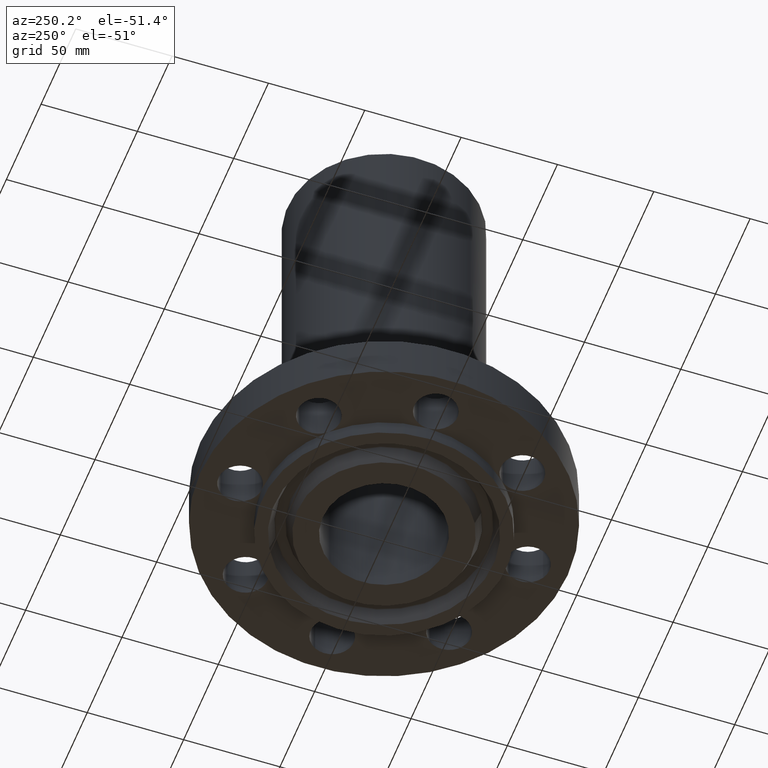
[diagram: clean part render]
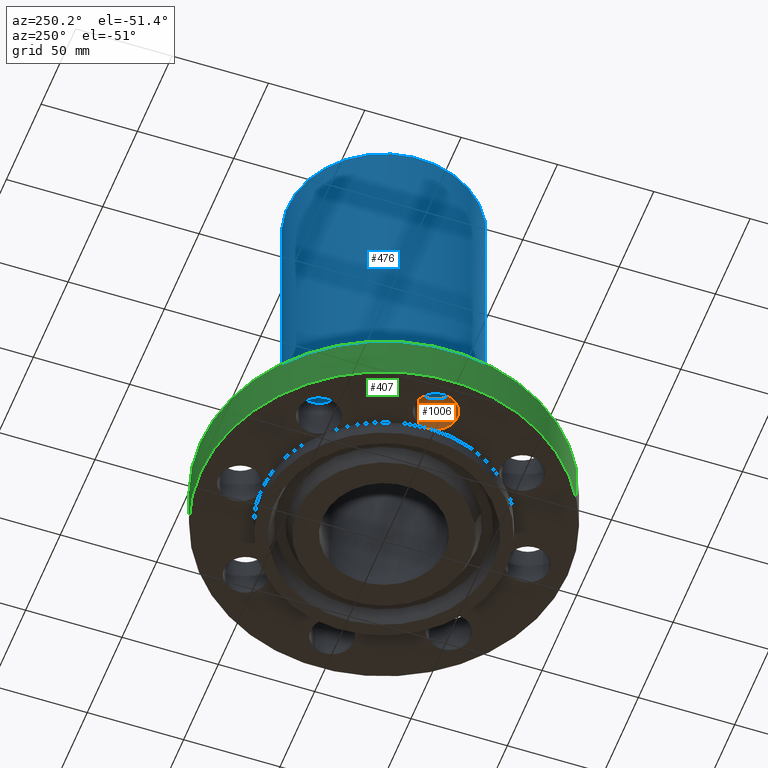
[diagram: same view with three faces highlighted in distinct colors, each labeled with its STEP entity id]
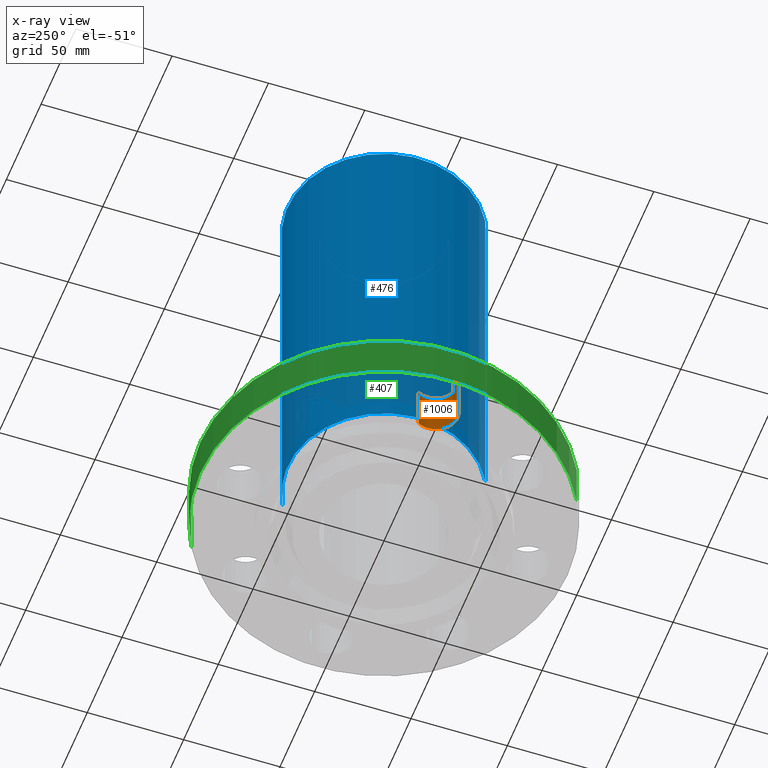
[diagram: x-ray of the same camera — body ghosted, the three highlighted faces saturated]
A machine part, auxiliary view with three faces highlighted in distinct colors.
The next image is the same camera in x-ray (body ghosted, the three faces saturated) — at least one of them is partly hidden behind the body in this view.
Their STEP definitions:

[orange] entity #1006 — the highlighted cylindrical surface (edge-blend (fillet) strip) has radius 11.176 mm, axis along (0, 0, 1).
#317=AXIS2_PLACEMENT_3D('Circle Axis2P3D',#315,#316,$) ;
#331=AXIS2_PLACEMENT_3D('Circle Axis2P3D',#329,#330,$) ;
#966=AXIS2_PLACEMENT_3D('Cylinder Axis2P3D',#963,#964,#965) ;
#996=AXIS2_PLACEMENT_3D('Circle Axis2P3D',#994,#995,$) ;
#170=CARTESIAN_POINT('Vertex',(-2.50000000001,-5.59482469102E-016,0.)) ;
#315=CARTESIAN_POINT('Axis2P3D Location',(-2.94000000001,-5.59482469102E-016,0.)) ;
#319=CARTESIAN_POINT('Vertex',(-2.55386367278,0.210947236987,0.)) ;
#326=CARTESIAN_POINT('Vertex',(-3.32613632725,-0.210947236987,2.2401153548E-016)) ;
#329=CARTESIAN_POINT('Axis2P3D Location',(-2.94000000001,-5.59482469102E-016,0.)) ;
#963=CARTESIAN_POINT('Axis2P3D Location',(-2.94000000001,-3.60046158951E-016,0.00393700787402)) ;
#968=CARTESIAN_POINT('Line Origine',(-2.55386367278,0.210947236987,0.468750000002)) ;
#972=CARTESIAN_POINT('Vertex',(-2.55386367278,0.210947236987,0.937500000004)) ;
#979=CARTESIAN_POINT('Vertex',(-3.32613632725,-0.210947236987,0.937500000004)) ;
#982=CARTESIAN_POINT('Line Origine',(-3.32613632725,-0.210947236987,0.468750000002)) ;
#994=CARTESIAN_POINT('Axis2P3D Location',(-2.94000000001,-3.60046158951E-016,0.937500000004)) ;
#316=DIRECTION('Axis2P3D Direction',(0.,0.,-0.0393700787402)) ;
#330=DIRECTION('Axis2P3D Direction',(0.,0.,-0.0393700787402)) ;
#964=DIRECTION('Axis2P3D Direction',(0.,0.,0.0393700787402)) ;
#965=DIRECTION('Axis2P3D XDirection',(-0.0345504945626,-0.0188750212049,0.)) ;
#969=DIRECTION('Vector Direction',(0.,0.,0.0393700787402)) ;
#983=DIRECTION('Vector Direction',(0.,0.,0.0393700787402)) ;
#995=DIRECTION('Axis2P3D Direction',(0.,0.,0.0393700787402)) ;
#970=VECTOR('Line Direction',#969,0.0393700787402) ;
#984=VECTOR('Line Direction',#983,0.0393700787402) ;
#1000=ORIENTED_EDGE('',*,*,#986,.F.) ;
#1001=ORIENTED_EDGE('',*,*,#998,.F.) ;
#1002=ORIENTED_EDGE('',*,*,#974,.T.) ;
#1003=ORIENTED_EDGE('',*,*,#321,.T.) ;
#1004=ORIENTED_EDGE('',*,*,#333,.T.) ;
#1006=ADVANCED_FACE('PartBody',(#1005),#967,.F.) ;
#318=CIRCLE('generated circle',#317,0.440000000002) ;
#332=CIRCLE('generated circle',#331,0.440000000002) ;
#997=CIRCLE('generated circle',#996,0.440000000002) ;
#967=CYLINDRICAL_SURFACE('generated cylinder',#966,0.440000000002) ;
#321=EDGE_CURVE('',#320,#171,#318,.T.) ;
#333=EDGE_CURVE('',#171,#327,#332,.T.) ;
#974=EDGE_CURVE('',#973,#320,#971,.F.) ;
#986=EDGE_CURVE('',#980,#327,#985,.F.) ;
#998=EDGE_CURVE('',#973,#980,#997,.F.) ;
#999=EDGE_LOOP('',(#1000,#1001,#1002,#1003,#1004)) ;
#1005=FACE_OUTER_BOUND('',#999,.T.) ;
#971=LINE('Line',#968,#970) ;
#985=LINE('Line',#982,#984) ;
#171=VERTEX_POINT('',#170) ;
#320=VERTEX_POINT('',#319) ;
#327=VERTEX_POINT('',#326) ;
#973=VERTEX_POINT('',#972) ;
#980=VERTEX_POINT('',#979) ;

[blue] entity #476 — the highlighted cylindrical surface (partial cylindrical patch) has radius 50.038 mm, axis along (0, 0, -1).
#423=AXIS2_PLACEMENT_3D('Cylinder Axis2P3D',#420,#421,#422) ;
#462=AXIS2_PLACEMENT_3D('Circle Axis2P3D',#460,#461,$) ;
#467=AXIS2_PLACEMENT_3D('Circle Axis2P3D',#465,#466,$) ;
#420=CARTESIAN_POINT('Axis2P3D Location',(0.,0.,4.31225000002)) ;
#429=CARTESIAN_POINT('Vertex',(0.944468311054,1.72883764693,0.937500000004)) ;
#431=CARTESIAN_POINT('Vertex',(-0.944468311054,-1.72883764693,0.937500000004)) ;
#434=CARTESIAN_POINT('Line Origine',(0.944468311054,1.72883764693,4.93750000002)) ;
#438=CARTESIAN_POINT('Vertex',(0.944468311054,1.72883764693,8.93750000004)) ;
#445=CARTESIAN_POINT('Vertex',(-0.944468311054,-1.72883764693,8.93750000004)) ;
#448=CARTESIAN_POINT('Line Origine',(-0.944468311054,-1.72883764693,4.93750000002)) ;
#460=CARTESIAN_POINT('Axis2P3D Location',(0.,0.,0.937500000004)) ;
#465=CARTESIAN_POINT('Axis2P3D Location',(0.,0.,8.93750000004)) ;
#421=DIRECTION('Axis2P3D Direction',(0.,0.,-0.0393700787402)) ;
#422=DIRECTION('Axis2P3D XDirection',(-0.0188750212049,-0.0345504945626,0.)) ;
#435=DIRECTION('Vector Direction',(0.,0.,-0.0393700787402)) ;
#449=DIRECTION('Vector Direction',(0.,0.,-0.0393700787402)) ;
#461=DIRECTION('Axis2P3D Direction',(0.,0.,-0.0393700787402)) ;
#466=DIRECTION('Axis2P3D Direction',(0.,0.,-0.0393700787402)) ;
#436=VECTOR('Line Direction',#435,0.0393700787402) ;
#450=VECTOR('Line Direction',#449,0.0393700787402) ;
#471=ORIENTED_EDGE('',*,*,#464,.F.) ;
#472=ORIENTED_EDGE('',*,*,#452,.T.) ;
#473=ORIENTED_EDGE('',*,*,#469,.T.) ;
#474=ORIENTED_EDGE('',*,*,#440,.F.) ;
#476=ADVANCED_FACE('PartBody',(#475),#424,.T.) ;
#463=CIRCLE('generated circle',#462,1.97000000001) ;
#468=CIRCLE('generated circle',#467,1.97000000001) ;
#424=CYLINDRICAL_SURFACE('generated cylinder',#423,1.97000000001) ;
#440=EDGE_CURVE('',#430,#439,#437,.F.) ;
#452=EDGE_CURVE('',#432,#446,#451,.F.) ;
#464=EDGE_CURVE('',#432,#430,#463,.T.) ;
#469=EDGE_CURVE('',#446,#439,#468,.T.) ;
#470=EDGE_LOOP('',(#471,#472,#473,#474)) ;
#475=FACE_OUTER_BOUND('',#470,.T.) ;
#437=LINE('Line',#434,#436) ;
#451=LINE('Line',#448,#450) ;
#430=VERTEX_POINT('',#429) ;
#432=VERTEX_POINT('',#431) ;
#439=VERTEX_POINT('',#438) ;
#446=VERTEX_POINT('',#445) ;

[green] entity #407 — the highlighted cylindrical surface (partial cylindrical patch) has radius 95.25 mm, axis along (0, 0, -1).
#82=AXIS2_PLACEMENT_3D('Circle Axis2P3D',#80,#81,$) ;
#380=AXIS2_PLACEMENT_3D('Cylinder Axis2P3D',#377,#378,#379) ;
#391=AXIS2_PLACEMENT_3D('Circle Axis2P3D',#389,#390,$) ;
#80=CARTESIAN_POINT('Axis2P3D Location',(0.,0.,0.)) ;
#84=CARTESIAN_POINT('Vertex',(-1.79784576977,-3.2909346071,5.59482469102E-016)) ;
#86=CARTESIAN_POINT('Vertex',(1.79784576977,3.2909346071,5.59482469102E-016)) ;
#377=CARTESIAN_POINT('Axis2P3D Location',(0.,0.,4.31225000002)) ;
#382=CARTESIAN_POINT('Line Origine',(-1.79784576977,-3.2909346071,0.468750000002)) ;
#386=CARTESIAN_POINT('Vertex',(-1.79784576977,-3.2909346071,0.937500000004)) ;
#389=CARTESIAN_POINT('Axis2P3D Location',(0.,0.,0.937500000004)) ;
#393=CARTESIAN_POINT('Vertex',(1.79784576977,3.2909346071,0.937500000004)) ;
#396=CARTESIAN_POINT('Line Origine',(1.79784576977,3.2909346071,0.468750000002)) ;
#81=DIRECTION('Axis2P3D Direction',(0.,0.,-0.0393700787402)) ;
#378=DIRECTION('Axis2P3D Direction',(0.,0.,-0.0393700787402)) ;
#379=DIRECTION('Axis2P3D XDirection',(0.0188750212049,0.0345504945626,0.)) ;
#383=DIRECTION('Vector Direction',(0.,0.,-0.0393700787402)) ;
#390=DIRECTION('Axis2P3D Direction',(0.,0.,-0.0393700787402)) ;
#397=DIRECTION('Vector Direction',(0.,0.,-0.0393700787402)) ;
#384=VECTOR('Line Direction',#383,0.0393700787402) ;
#398=VECTOR('Line Direction',#397,0.0393700787402) ;
#402=ORIENTED_EDGE('',*,*,#88,.F.) ;
#403=ORIENTED_EDGE('',*,*,#388,.T.) ;
#404=ORIENTED_EDGE('',*,*,#395,.T.) ;
#405=ORIENTED_EDGE('',*,*,#400,.F.) ;
#407=ADVANCED_FACE('PartBody',(#406),#381,.T.) ;
#83=CIRCLE('generated circle',#82,3.75000000002) ;
#392=CIRCLE('generated circle',#391,3.75000000002) ;
#381=CYLINDRICAL_SURFACE('generated cylinder',#380,3.75000000002) ;
#88=EDGE_CURVE('',#85,#87,#83,.T.) ;
#388=EDGE_CURVE('',#85,#387,#385,.F.) ;
#395=EDGE_CURVE('',#387,#394,#392,.T.) ;
#400=EDGE_CURVE('',#87,#394,#399,.F.) ;
#401=EDGE_LOOP('',(#402,#403,#404,#405)) ;
#406=FACE_OUTER_BOUND('',#401,.T.) ;
#385=LINE('Line',#382,#384) ;
#399=LINE('Line',#396,#398) ;
#85=VERTEX_POINT('',#84) ;
#87=VERTEX_POINT('',#86) ;
#387=VERTEX_POINT('',#386) ;
#394=VERTEX_POINT('',#393) ;